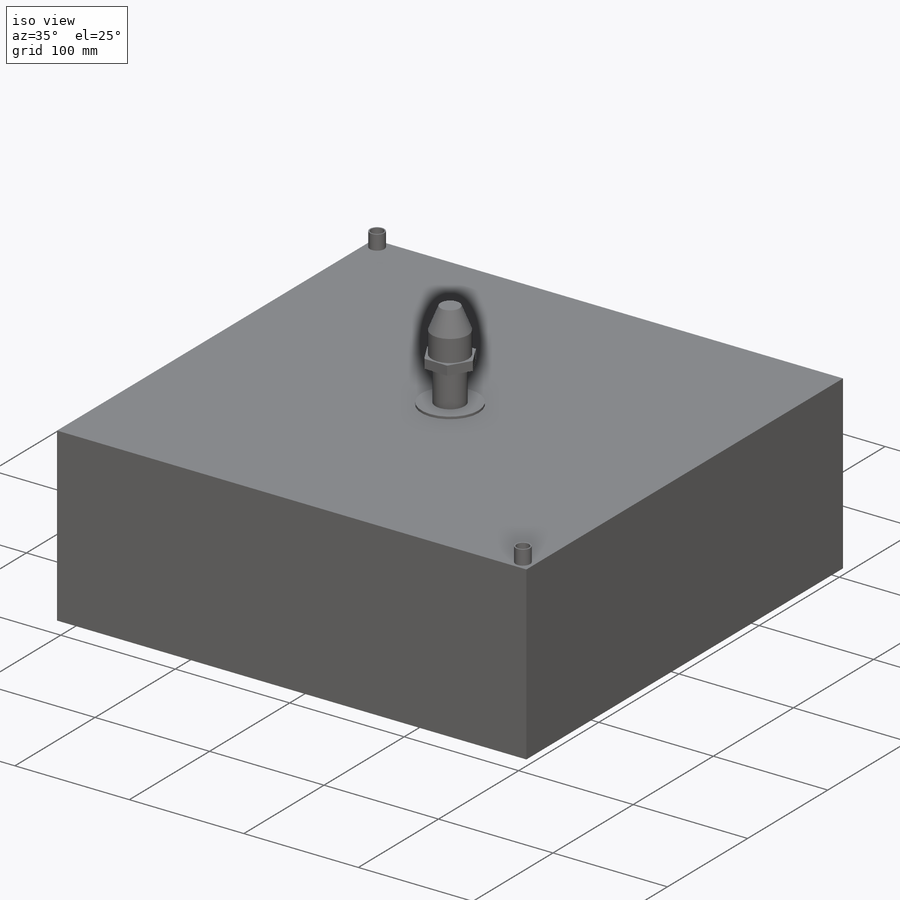
[diagram: iso view]
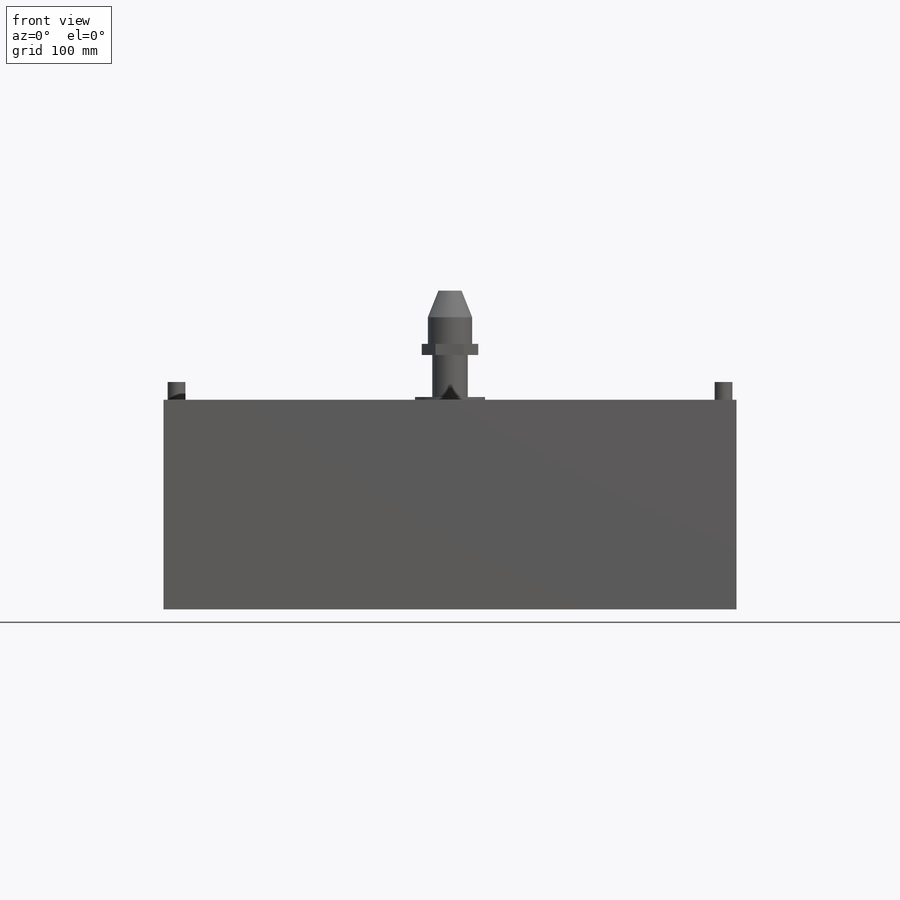
[diagram: front view]
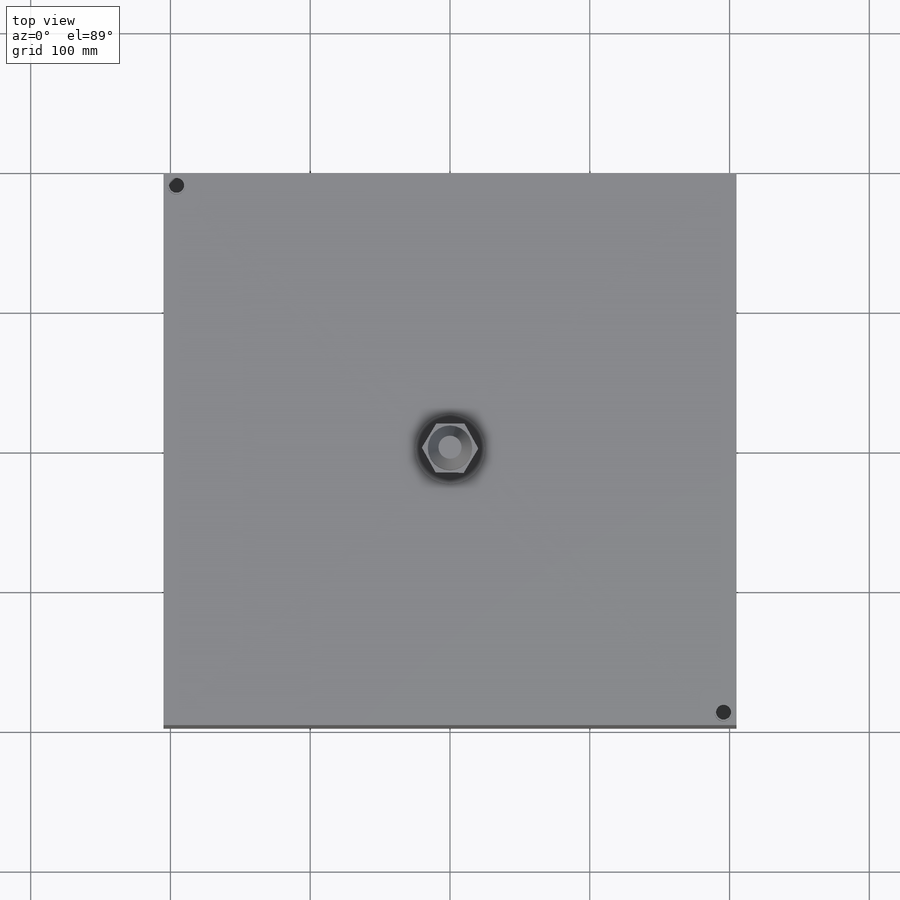
[diagram: top view]
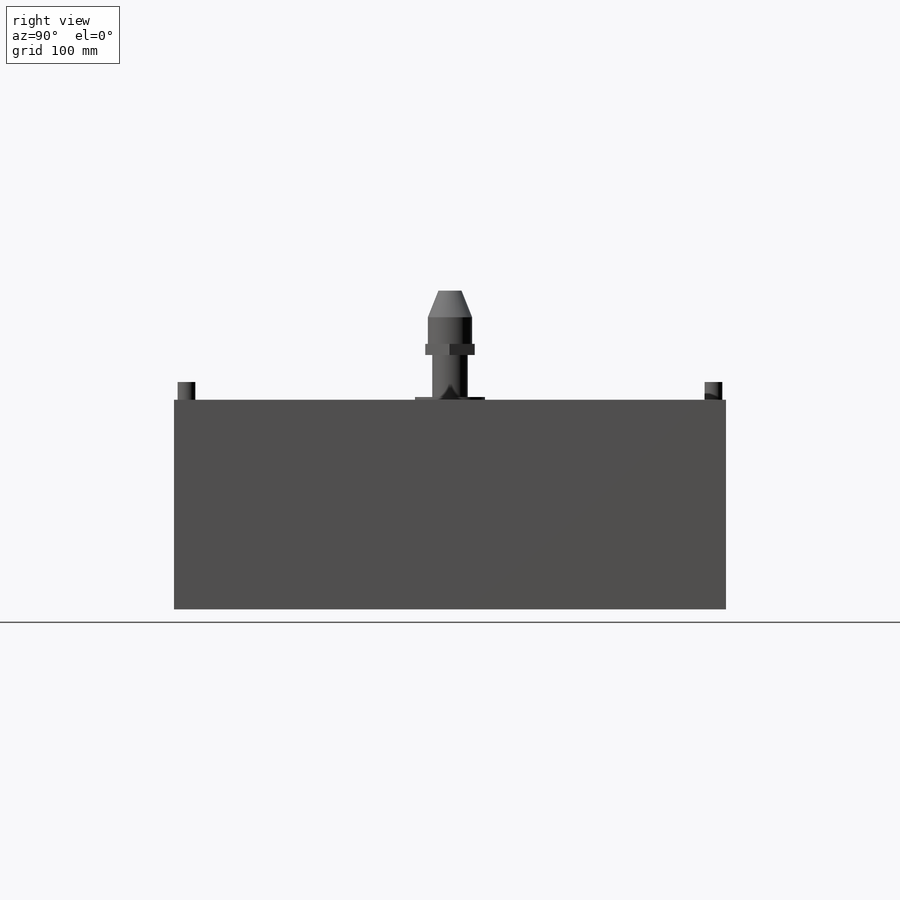
[diagram: right view]
SOLIDWORKS PART (.sldprt)
format: sldprt  version: not decoded by parser v0  size: 187,904 bytes
history: native  units: mm
features: sketch x6, extrude x5, material x1, shell x1, revolve x1 (+13 scaffold rows collapsed)
feature tree (27):
  scaffold x13  (default folders/planes/origin — collapsed)
  material  "Material <not specified>"
  sketch  "Sketch1"  dims[D1=410.0mm D2=150.0mm]
  extrude  "Extrude1"  Depth=395mm
  sketch  "Sketch2"  dims[D1=12.7mm]
  extrude  "Extrude2"  Depth=12.7mm
  shell  "Shell1"  Thickness=1mm
  sketch  "Sketch3"  dims[D1=50.0mm]
  extrude  "Extrude3"  Depth=2mm
  sketch  "Sketch4"  dims[D1=25.4mm]
  extrude  "Extrude4"  Depth=30mm
  sketch  "Sketch5"  dims[D1=35.0mm]
  extrude  "Extrude5"  Depth=8mm
  sketch  "Sketch6"  dims[D1=31.75mm D2=38.1mm D3=8.255mm D4=19.05mm]
  revolve  "Revolve1"  Angle=360deg
decode coverage: 13 of 13 modeling features carry decoded parameters
note: suppression state not decoded; provenance and decode notes live in map.json
